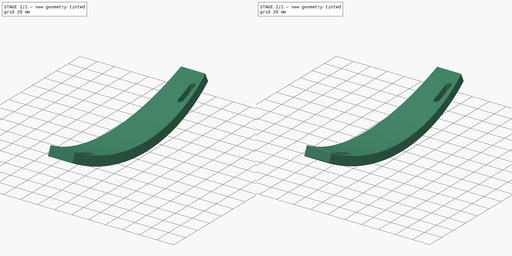
[diagram: build sequence overview — one tinted view per stage of 2, left to right]
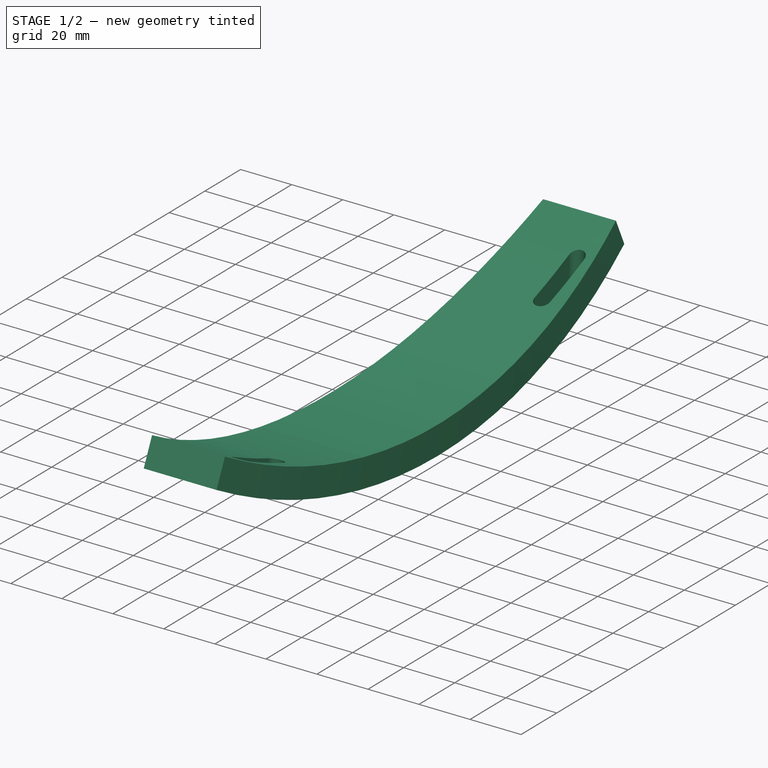
[diagram: stage 1 of 2 — iso view after this stage's code; geometry added in this stage tinted green]
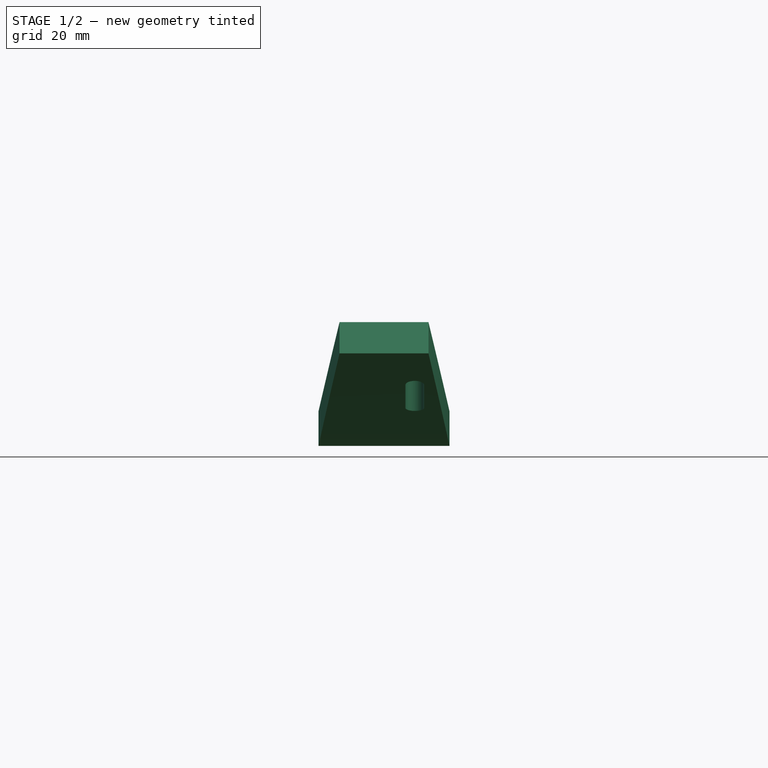
[diagram: stage 1 of 2 — front view after this stage's code; geometry added in this stage tinted green]
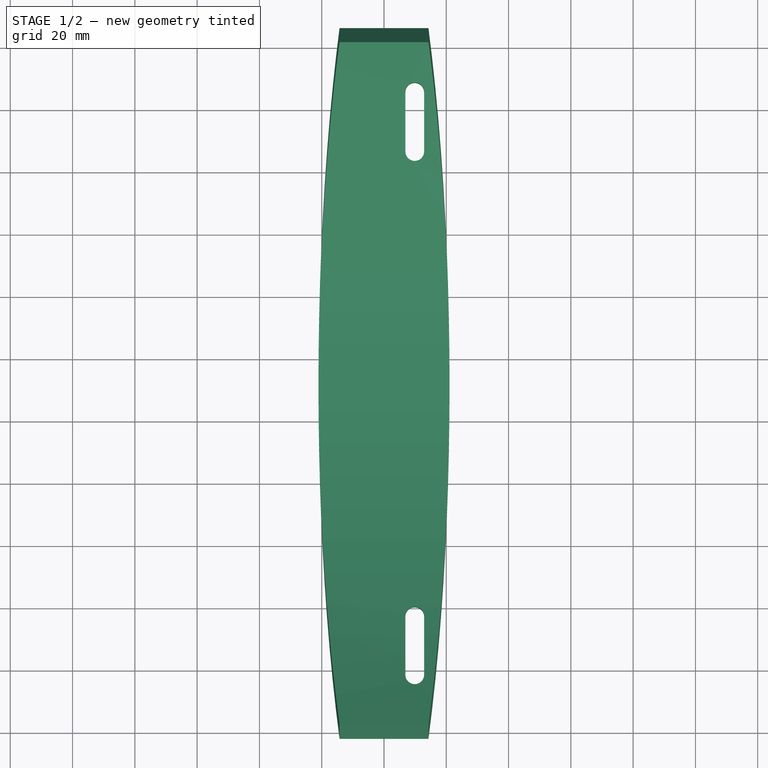
[diagram: stage 1 of 2 — top view after this stage's code; geometry added in this stage tinted green]
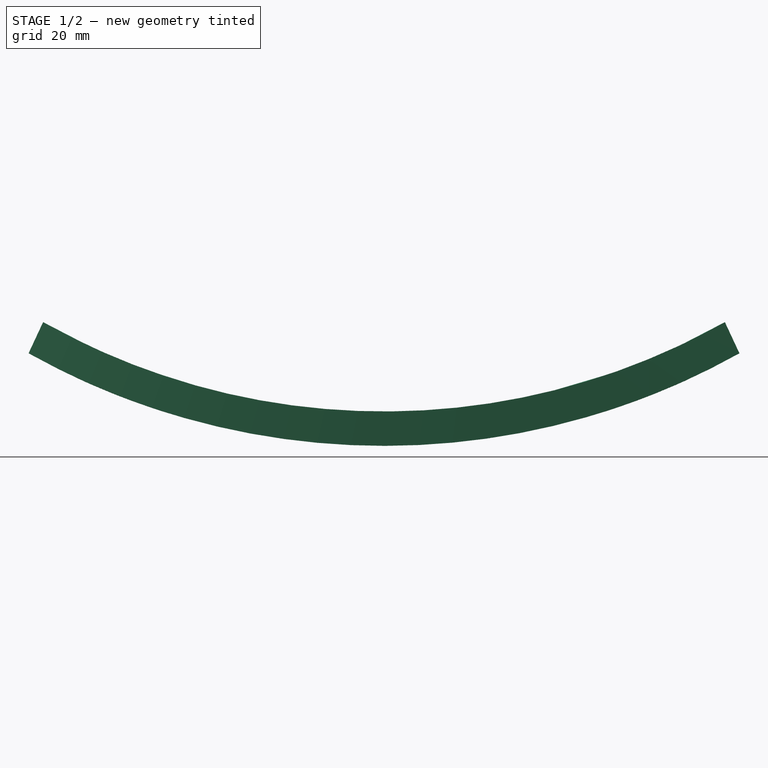
[diagram: stage 1 of 2 — right view after this stage's code; geometry added in this stage tinted green]
FCSTD DOCUMENT  (FreeCAD 0.20R29603 (Git))
Label: P009
License: All rights reserved
LicenseURL: http://en.wikipedia.org/wiki/All_rights_reserved
objects: Sketcher::SketchObject×5, PartDesign::Plane×4, PartDesign::Line×3, PartDesign::AdditivePipe×1, PartDesign::Point×1, PartDesign::Pocket×1, PartDesign::Fillet×1, PartDesign::Body×1
note: 20 computed .brp shape members not serialized (recipe doc carries the construction recipe); baked Part::Feature solids carry a one-line shape summary decoded from their .brp

FEATURE [PartDesign::Line] DatumLine
  AttacherType = Attacher::AttachEngineLine
  Length = 20
  MapMode = 18
  ResizeMode = 0
FEATURE [PartDesign::Plane] DatumPlane
  AttachmentOffset = pos=(0,0,0) rot=(-1,0,0;0.436332rad)
  Length = 73.2978
  MapMode = 3
  Placement = pos=(0,0,0) rot=(1,0,0;1.13446rad)
  ResizeMode = 0
  Support = -> [DatumLine]
  Width = 294.692
FEATURE [Sketcher::SketchObject] Sketch
  FullyConstrained = true
  MapMode = 5
  Placement = pos=(0,0,0) rot=(1,0,0;1.13446rad)
  Support = -> [DatumPlane]
  sketch-geometry (4):
    g0: LineSegment StartX=-14.275 StartY=5.525 StartZ=0 EndX=14.275 EndY=5.525 EndZ=0
    g1: LineSegment StartX=14.275 StartY=5.525 StartZ=0 EndX=14.275 EndY=-5.525 EndZ=0
    g2: LineSegment StartX=14.275 StartY=-5.525 StartZ=0 EndX=-14.275 EndY=-5.525 EndZ=0
    g3: LineSegment StartX=-14.275 StartY=-5.525 StartZ=0 EndX=-14.275 EndY=5.525 EndZ=0
  constraints (11):
    c: Coincident(g0,g1)
    c: Coincident(g1,g2)
    c: Coincident(g2,g3)
    c: Coincident(g3,g0)
    c: Horizontal(g0)
    c: Horizontal(g2)
    c: Vertical(g1)
    c: Vertical(g3)
    c: DistanceX(g0,g0) = 28.55
    c: DistanceY(g3,g3) = 11.05
    c: Symmetric(g1,g0,g-1)
FEATURE [PartDesign::Line] DatumLine001
  AttacherType = Attacher::AttachEngineLine
  Length = 20
  MapMode = 18
  Placement = pos=(0,223.59,0) rot=(0,0,1;0rad)
  ResizeMode = 0
FEATURE [PartDesign::Plane] DatumPlane001
  AttachmentOffset = pos=(0,0,0) rot=(1,0,0;0.436332rad)
  Length = 73.2978
  MapMode = 3
  Placement = pos=(0,223.59,0) rot=(1,0,0;2.00713rad)
  ResizeMode = 0
  Support = -> [DatumLine001]
  Width = 294.692
FEATURE [Sketcher::SketchObject] Sketch001
  FullyConstrained = true
  MapMode = 5
  Placement = pos=(0,223.59,0) rot=(1,0,0;2.00713rad)
  Support = -> [DatumPlane001]
  sketch-geometry (4):
    g0: LineSegment StartX=-14.275 StartY=5.525 StartZ=0 EndX=14.275 EndY=5.525 EndZ=0
    g1: LineSegment StartX=14.275 StartY=5.525 StartZ=0 EndX=14.275 EndY=-5.525 EndZ=0
    g2: LineSegment StartX=14.275 StartY=-5.525 StartZ=0 EndX=-14.275 EndY=-5.525 EndZ=0
    g3: LineSegment StartX=-14.275 StartY=-5.525 StartZ=0 EndX=-14.275 EndY=5.525 EndZ=0
  constraints (11):
    c: Coincident(g0,g1)
    c: Coincident(g1,g2)
    c: Coincident(g2,g3)
    c: Coincident(g3,g0)
    c: Horizontal(g0)
    c: Horizontal(g2)
    c: Vertical(g1)
    c: Vertical(g3)
    c: DistanceX(g0,g0) = 28.55
    c: DistanceY(g3,g3) = 11.05
    c: Symmetric(g0,g1,g-1)
FEATURE [Sketcher::SketchObject] Sketch002
  ExternalGeometry = -> [Sketch,Sketch001]
  FullyConstrained = true
  MapMode = 5
  Placement = pos=(0,0,0) rot=(0.57735,0.57735,0.57735;2.0944rad)
  Support = -> [YZ_Plane]
  sketch-geometry (1):
    g0: ArcOfCircle CenterX=111.795 CenterY=199.273 CenterZ=0 NormalX=0 NormalY=0 NormalZ=1 AngleXU=0 Radius=234 StartAngle=4.2029 EndAngle=5.22188
  constraints (3):
    c: Coincident(g0,g-3)
    c: Coincident(g0,g-4)
    c: Radius(g0) = 234
FEATURE [PartDesign::Line] DatumLine002
  AttacherType = Attacher::AttachEngineLine
  Length = 20
  MapMode = 18
  ResizeMode = 0
FEATURE [PartDesign::Plane] DatumPlane002
  AttachmentOffset = pos=(0,0,-112.8) rot=(0,0,1;0rad)
  Length = 69.0412
  MapMode = 3
  Placement = pos=(0,112.8,-2.5e-14) rot=(1,0,0;1.5708rad)
  ResizeMode = 0
  Support = -> [DatumLine002]
  Width = 200.325
FEATURE [Sketcher::SketchObject] Sketch003
  ExternalGeometry = -> [Sketch002]
  FullyConstrained = true
  MapMode = 5
  Placement = pos=(0,112.8,-2.5e-14) rot=(1,0,0;1.5708rad)
  Support = -> [DatumPlane002]
  sketch-geometry (4):
    g0: LineSegment StartX=-21.04 StartY=-23.6773 StartZ=0 EndX=21.04 EndY=-23.6773 EndZ=0
    g1: LineSegment StartX=21.04 StartY=-23.6773 StartZ=0 EndX=21.04 EndY=-34.7273 EndZ=0
    g2: LineSegment StartX=21.04 StartY=-34.7273 StartZ=0 EndX=-21.04 EndY=-34.7273 EndZ=0
    g3: LineSegment StartX=-21.04 StartY=-34.7273 StartZ=0 EndX=-21.04 EndY=-23.6773 EndZ=0
  constraints (11):
    c: Coincident(g0,g1)
    c: Coincident(g1,g2)
    c: Coincident(g2,g3)
    c: Coincident(g3,g0)
    c: Horizontal(g0)
    c: Horizontal(g2)
    c: Vertical(g1)
    c: Vertical(g3)
    c: DistanceX(g0,g0) = 42.08
    c: DistanceY(g3,g3) = 11.05
    c: Symmetric(g2,g1,g-3)
FEATURE [PartDesign::AdditivePipe] AdditivePipe
  AuxilleryCurvelinear = true
  AuxillerySpineTangent = false
  Binormal = (0,0,0)
  Mode = 0
  Placement = pos=(0,0,0) rot=(1,0,0;1.13446rad)
  Profile = -> Sketch
  Refine = true
  Sections = -> [Sketch003,Sketch001]
  Spine = -> Sketch002
  SpineTangent = false
  Transformation = 1
  Transition = 0
FEATURE [PartDesign::Point] DatumPoint
  AttacherType = Attacher::AttachEnginePoint
  MapMode = 37
  Placement = pos=(-5.3e-15,111.795,5.00735) rot=(0,0,1;0rad)
  Support = -> [AdditivePipe]
FEATURE [PartDesign::Plane] DatumPlane003
  Length = 72.5127
  MapMode = 6
  Placement = pos=(-5.3e-15,111.795,5.00735) rot=(0,1e-06,1;3.14159rad)
  ResizeMode = 0
  Support = -> [DatumPoint,AdditivePipe]
  Width = 275.923
FEATURE [Sketcher::SketchObject] Sketch004
  ExternalGeometry = -> [AdditivePipe]
  FullyConstrained = true
  MapMode = 5
  Placement = pos=(-5.3e-15,111.795,5.00735) rot=(0,1e-06,1;3.14159rad)
  Support = -> [DatumPlane003]
  sketch-geometry (8):
    g0: ArcOfCircle CenterX=-9.875 CenterY=93.61 CenterZ=0 NormalX=0 NormalY=0 NormalZ=1 AngleXU=0 Radius=3 StartAngle=-9e-16 EndAngle=3.14159
    g1: ArcOfCircle CenterX=-9.875 CenterY=74.61 CenterZ=0 NormalX=0 NormalY=0 NormalZ=1 AngleXU=0 Radius=3 StartAngle=3.14159 EndAngle=6.28319
    g2: LineSegment StartX=-12.875 StartY=93.61 StartZ=0 EndX=-12.875 EndY=74.61 EndZ=0
    g3: LineSegment StartX=-6.875 StartY=74.61 StartZ=0 EndX=-6.875 EndY=93.61 EndZ=0
    g4: ArcOfCircle CenterX=-9.875 CenterY=-74.61 CenterZ=0 NormalX=0 NormalY=0 NormalZ=1 AngleXU=0 Radius=3 StartAngle=0 EndAngle=3.14159
    g5: ArcOfCircle CenterX=-9.875 CenterY=-93.61 CenterZ=0 NormalX=0 NormalY=0 NormalZ=1 AngleXU=0 Radius=3 StartAngle=3.14159 EndAngle=6.28319
    g6: LineSegment StartX=-12.875 StartY=-74.61 StartZ=0 EndX=-12.875 EndY=-93.61 EndZ=0
    g7: LineSegment StartX=-6.875 StartY=-93.61 StartZ=0 EndX=-6.875 EndY=-74.61 EndZ=0
  constraints (20):
    c: Tangent(g0,g2) = -1.5708
    c: Tangent(g2,g1) = -1.5708
    c: Tangent(g1,g3) = -1.5708
    c: Tangent(g3,g0) = -1.5708
    c: Equal(g0,g1)
    c: Tangent(g4,g6) = -1.5708
    c: Tangent(g6,g5) = -1.5708
    c: Tangent(g5,g7) = -1.5708
    c: Tangent(g7,g4) = -1.5708
    c: Equal(g4,g5)
    c: Equal(g0,g4)
    c: Equal(g3,g7)
    c: Vertical(g1,g4)
    c: Vertical(g3)
    c: Vertical(g7)
    c: Radius(g0) = 3
    c: DistanceY(g3,g3) = 19
    c: DistanceX(g0,g-3) = 24.15
    c: DistanceY(g0,g-3) = 15.85
    c: DistanceY(g-4,g5) = 15.85
FEATURE [PartDesign::Pocket] Pocket
  BaseFeature = -> AdditivePipe
  Direction = (1e-16,-1.27209e-06,-1)
  Length = 5
  Length2 = 5
  Placement = pos=(0,0,0) rot=(1,0,0;1.13446rad)
  Profile = -> Sketch004
  ReferenceAxis = -> Sketch004 [N_Axis]
  Refine = true
  Type = 1
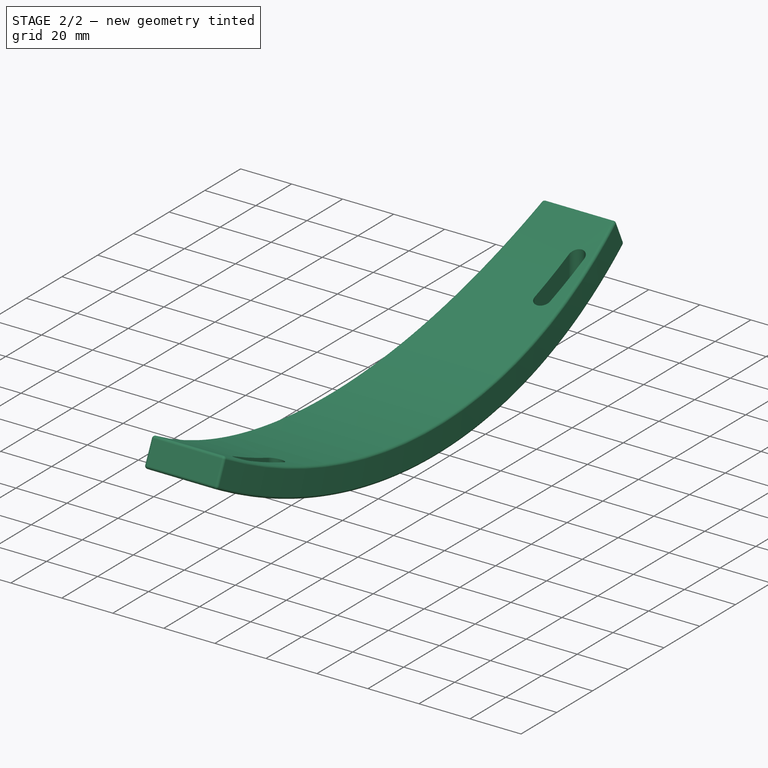
[diagram: stage 2 of 2 — iso view after this stage's code; geometry added in this stage tinted green]
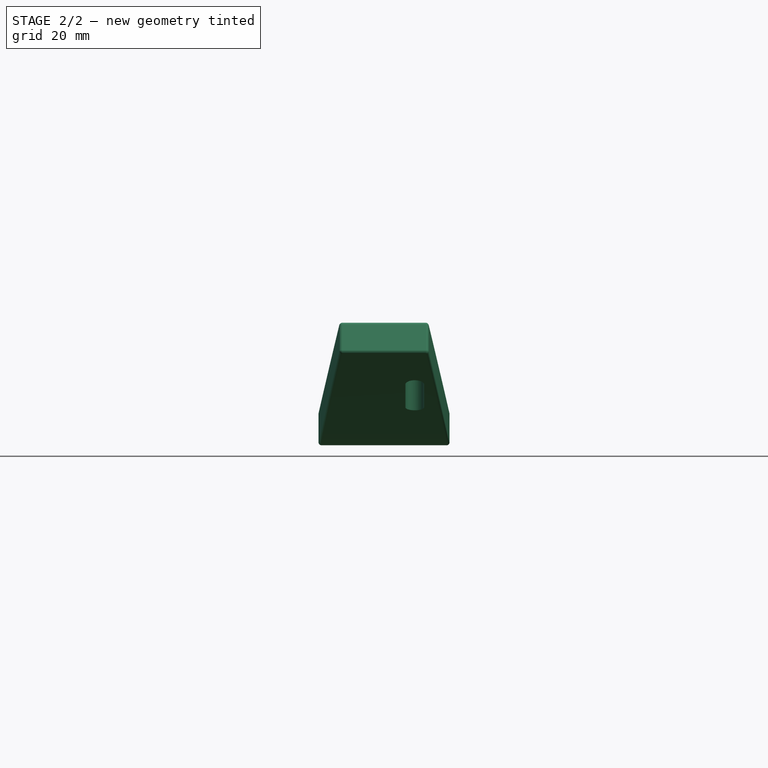
[diagram: stage 2 of 2 — front view after this stage's code; geometry added in this stage tinted green]
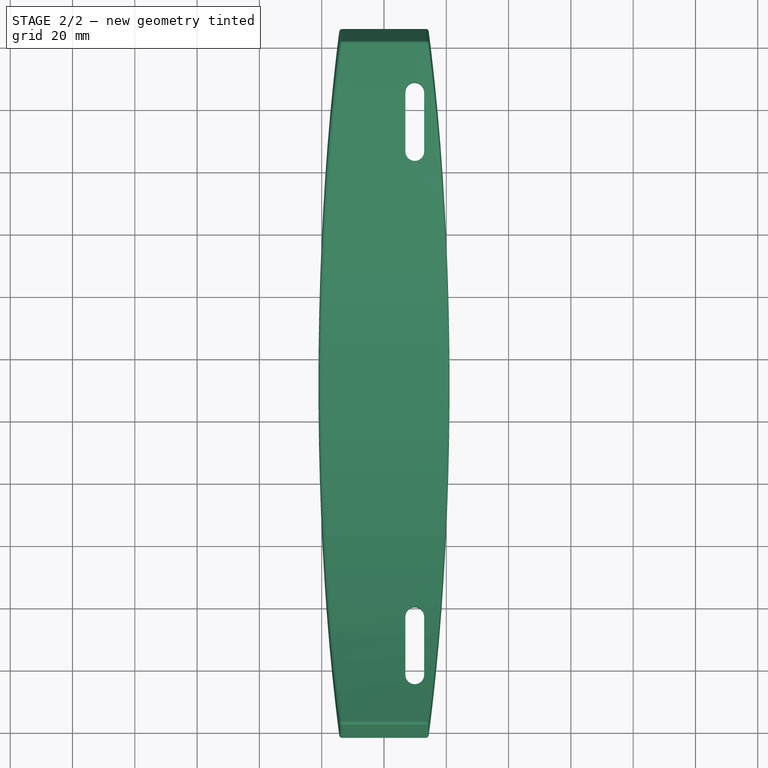
[diagram: stage 2 of 2 — top view after this stage's code; geometry added in this stage tinted green]
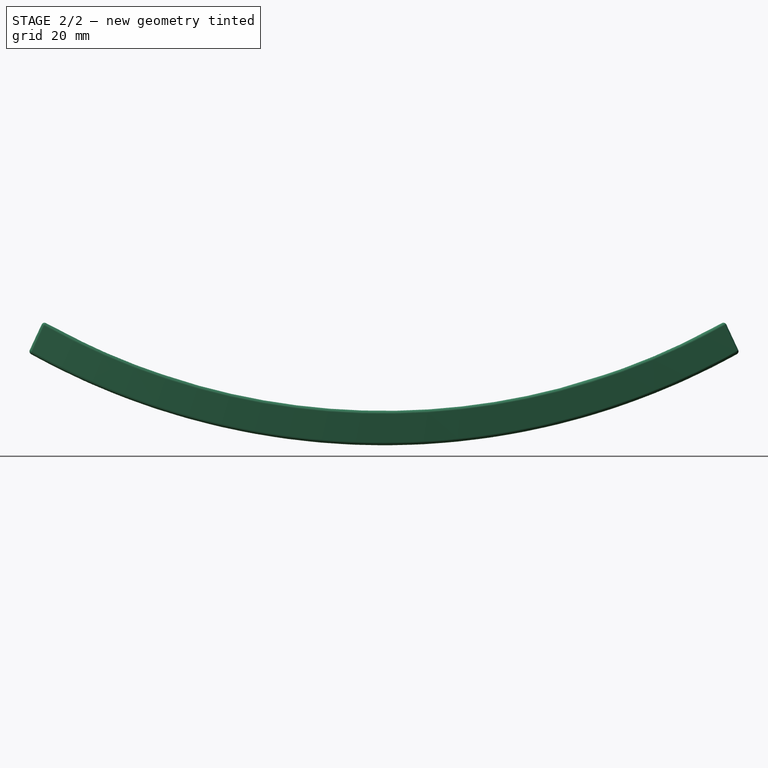
[diagram: stage 2 of 2 — right view after this stage's code; geometry added in this stage tinted green]
FEATURE [PartDesign::Fillet] Fillet
  Base = -> Pocket [Edge32,Edge19,Edge2,Edge4,Edge7,Edge18,Edge5,Edge21,Edge1,Edge3,Edge6,Edge20]
  BaseFeature = -> Pocket
  Placement = pos=(0,0,0) rot=(1,0,0;1.13446rad)
  Radius = 1
  Refine = true
  SupportTransform = false
  UseAllEdges = false
FEATURE [PartDesign::Body] Body
  Group = -> [DatumLine,DatumPlane,Sketch,DatumLine001,DatumPlane001,Sketch001,Sketch002,DatumLine002,DatumPlane002,Sketch003,AdditivePipe,DatumPoint,DatumPlane003,Sketch004,Pocket,Fillet]
  Origin = -> Origin
  Tip = -> Fillet
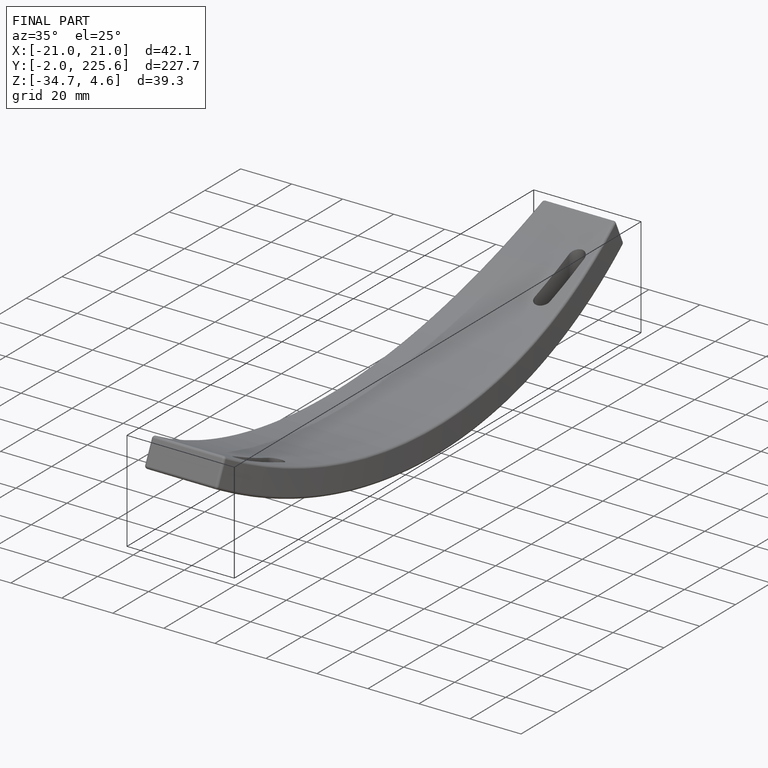
[diagram: finished part — iso view with bounding-box wireframe]
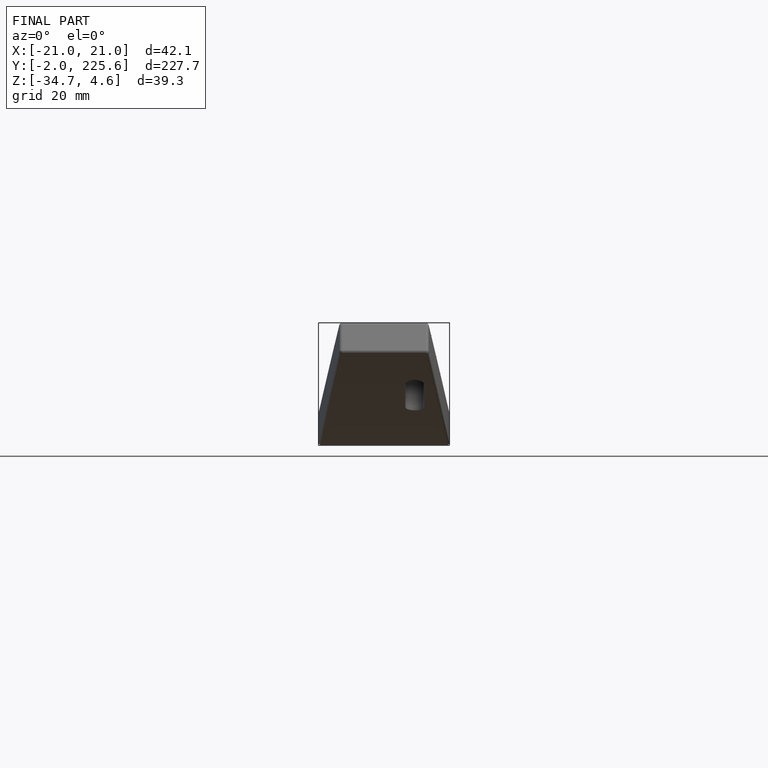
[diagram: finished part — front view with bounding-box wireframe]
